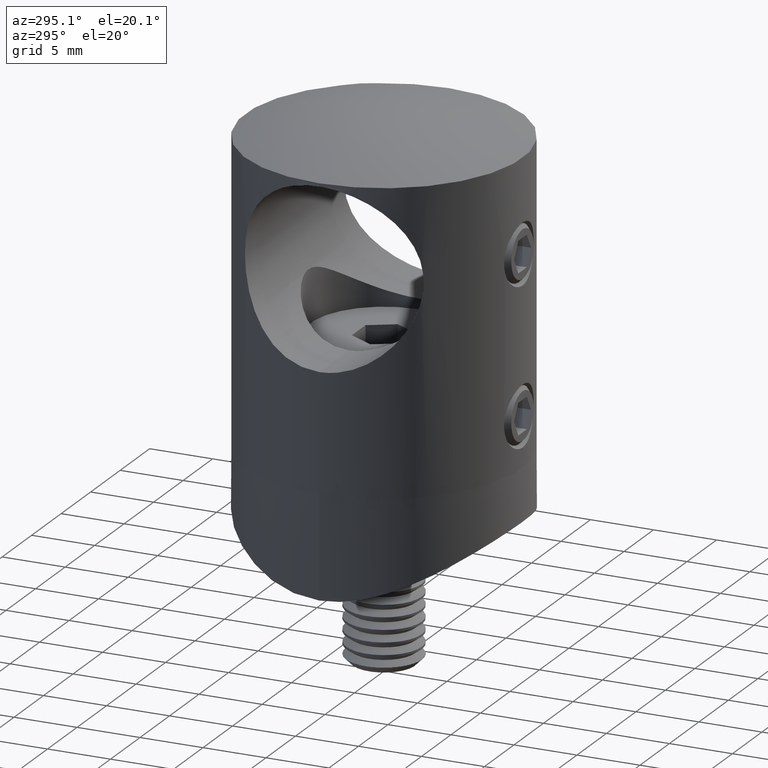
[diagram: clean part render]
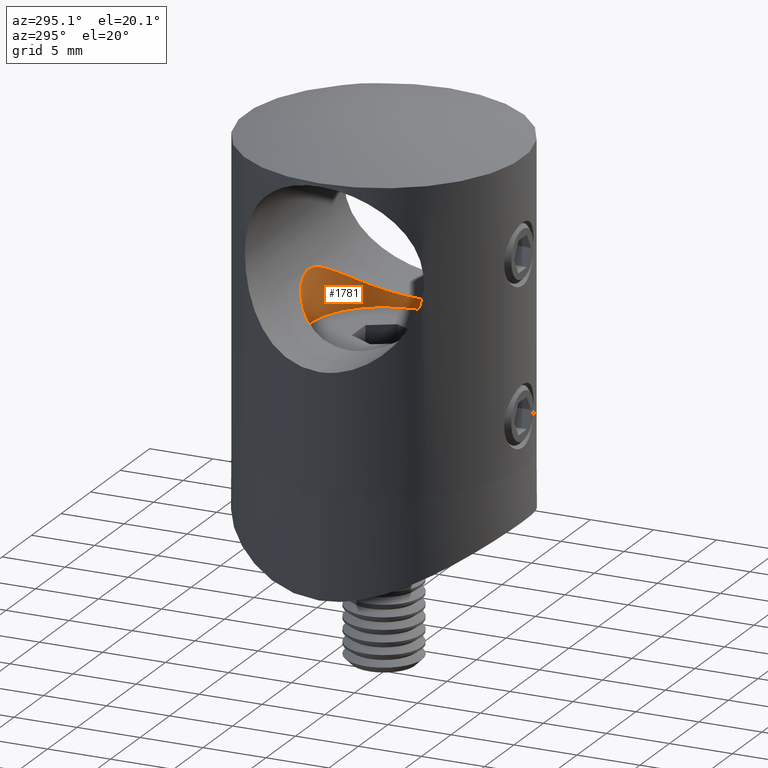
[diagram: same view with one face highlighted and labeled with its STEP entity id]
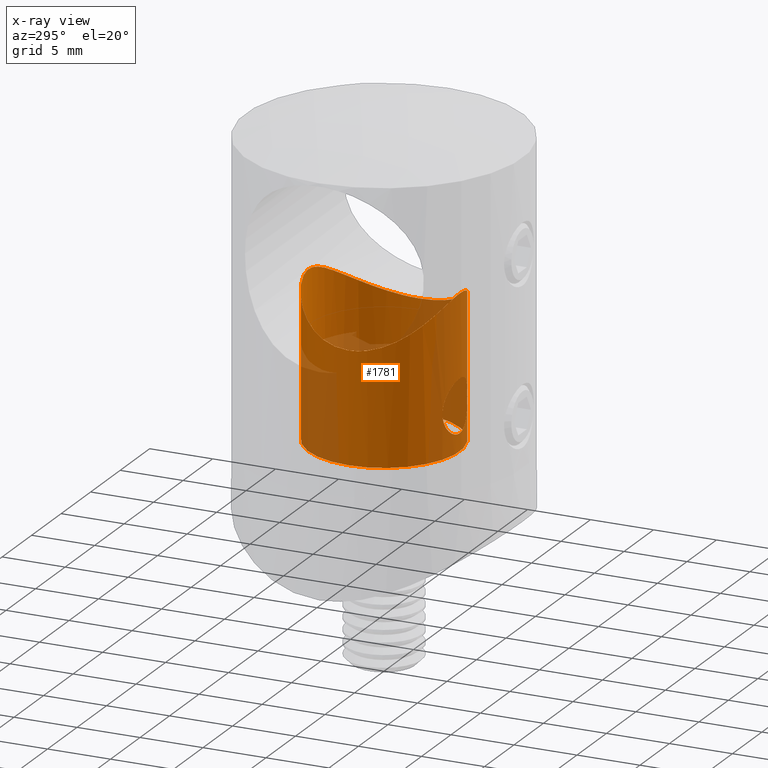
[diagram: x-ray of the same camera — body ghosted, the highlighted face saturated]
A machine part, auxiliary view. The second image highlights one B-rep face of the part: STEP entity #1781.
The next image is the same camera in x-ray: the body ghosted, the highlighted face saturated — about 34% of this face is hidden behind the body in this view.
In plain terms, the highlighted cylindrical surface (bore or boss wall) has radius 6 mm, axis along (-0, -0, -1).
Its self-contained STEP definition (entity closure, byte-faithful):
#216 = CARTESIAN_POINT ( 'NONE',  ( 0.8403754529403169000, -5.944502367105699600, 12.51740611922530300 ) ) ;
#236 = CARTESIAN_POINT ( 'NONE',  ( 1.820638573103270200, -5.717652440165352300, 5.055379003986187700 ) ) ;
#299 = CARTESIAN_POINT ( 'NONE',  ( 5.824379174162317900, 1.455723984333428600, 9.447817276396453000 ) ) ;
#414 = DIRECTION ( 'NONE',  ( 0.0000000000000000000, 0.0000000000000000000, -1.000000000000000000 ) ) ;
#493 = ORIENTED_EDGE ( 'NONE', *, *, #510, .F. ) ;
#510 = EDGE_CURVE ( 'NONE', #9156, #9156, #18685, .T. ) ;
#595 = CARTESIAN_POINT ( 'NONE',  ( -1.631362855885414300, -5.788242461569518000, 12.28559420233721300 ) ) ;
#614 = CARTESIAN_POINT ( 'NONE',  ( -2.085970634324527700, -5.625794041661615500, 4.278667550940393300 ) ) ;
#832 = CARTESIAN_POINT ( 'NONE',  ( -0.6805891605157771100, -5.962656029525707200, 2.008574322222096000 ) ) ;
#973 = CARTESIAN_POINT ( 'NONE',  ( -5.329813343587205500, -2.784648955960873400, 9.857183176020043900 ) ) ;
#1118 = CARTESIAN_POINT ( 'NONE',  ( -6.000000000000000000, -5.149960319306146100E-016, 9.299999999999998900 ) ) ;
#1781 = ADVANCED_FACE ( 'NONE', ( #3476, #9540, #2359 ), #15893, .F. ) ;
#1983 = CARTESIAN_POINT ( 'NONE',  ( 0.0000000000000000000, -6.000000000000000900, 1.900000000000006800 ) ) ;
#2000 = CARTESIAN_POINT ( 'NONE',  ( -5.999999999999998200, 0.4255906106727202500, 9.300000000000000700 ) ) ;
#2008 = CARTESIAN_POINT ( 'NONE',  ( 0.2172863810251527700, -5.999785139815387000, 12.60360981548990500 ) ) ;
#2026 = CARTESIAN_POINT ( 'NONE',  ( 1.055318436482936700, -5.907600806349175400, 2.179273462287427700 ) ) ;
#2155 = CARTESIAN_POINT ( 'NONE',  ( 5.828772570954779300, -1.438195329528195700, 9.444135390484151000 ) ) ;
#2242 = CARTESIAN_POINT ( 'NONE',  ( -5.421010862427522200E-017, -6.000000000000001800, 1.900000000000007200 ) ) ;
#2304 = CARTESIAN_POINT ( 'NONE',  ( -2.696397146119860800, -5.373303209285173100, 11.75317120065864900 ) ) ;
#2359 = FACE_OUTER_BOUND ( 'NONE', #22483, .T. ) ;
#2628 = CARTESIAN_POINT ( 'NONE',  ( -0.2760850920997860400, -5.995199655506469000, 6.086402343784770100 ) ) ;
#2907 = CARTESIAN_POINT ( 'NONE',  ( -5.572422891737574900, -2.233472215406453900, 9.657613010733536300 ) ) ;
#2939 = CARTESIAN_POINT ( 'NONE',  ( 2.001897216983309600, 5.668783512326655200, 12.11861732169408900 ) ) ;
#3015 = CARTESIAN_POINT ( 'NONE',  ( 1.626502383520758800, 5.789314081546451400, 12.28716072661946700 ) ) ;
#3090 = CARTESIAN_POINT ( 'NONE',  ( 5.027575539599600200, 3.280322343229418600, 10.10063688166239100 ) ) ;
#3476 = FACE_BOUND ( 'NONE', #4200, .T. ) ;
#3798 = CARTESIAN_POINT ( 'NONE',  ( -0.4188305109936360000, -5.988974953983113600, 12.58636915842258300 ) ) ;
#3817 = CARTESIAN_POINT ( 'NONE',  ( 0.9351004188317552100, -5.928068568057646800, 2.114661748824999200 ) ) ;
#3841 = CARTESIAN_POINT ( 'NONE',  ( -5.326490552797530100, 2.768939498764430200, 9.859487026903863700 ) ) ;
#3904 = DIRECTION ( 'NONE',  ( 1.000000000000000000, 0.0000000000000000000, 0.0000000000000000000 ) ) ;
#3967 = CARTESIAN_POINT ( 'NONE',  ( 1.992054000542895300, -5.659936331073166300, 4.678887825467367800 ) ) ;
#4024 = CARTESIAN_POINT ( 'NONE',  ( 2.003774538605403800, -5.658884263988764700, 12.11083033382254100 ) ) ;
#4042 = CARTESIAN_POINT ( 'NONE',  ( 2.086195265504057000, -5.625710555255438700, 4.277106224398222500 ) ) ;
#4054 = CARTESIAN_POINT ( 'NONE',  ( -3.638768708274211500, 4.784851395820308700, 11.14664390087054900 ) ) ;
#4117 = CARTESIAN_POINT ( 'NONE',  ( -1.991790499454957100, -5.660027428170497600, 4.679568982034624000 ) ) ;
#4194 = CARTESIAN_POINT ( 'NONE',  ( -1.388036528353558100, -5.838097357248577700, 5.581828602384570500 ) ) ;
#4200 = EDGE_LOOP ( 'NONE', ( #7796 ) ) ;
#4347 = CARTESIAN_POINT ( 'NONE',  ( -0.8376258012268633600, 5.944932101896895000, 12.51806431799274900 ) ) ;
#4414 = CARTESIAN_POINT ( 'NONE',  ( -1.054979748196500600, -5.907653145361193100, 2.179116733785587000 ) ) ;
#4713 = CARTESIAN_POINT ( 'NONE',  ( 4.453609379297916800, 4.037579987130033700, 10.55080833122428000 ) ) ;
#4868 = CARTESIAN_POINT ( 'NONE',  ( 5.131682348192301300, 3.115122463272038900, 10.01713305262651200 ) ) ;
#5513 = CARTESIAN_POINT ( 'NONE',  ( 0.2773110508732141700, -5.995114773543329000, 1.913844450117064800 ) ) ;
#5564 = CARTESIAN_POINT ( 'NONE',  ( -5.955259686151070000, 0.8403312590452684000, 9.337922232234763700 ) ) ;
#5592 = CARTESIAN_POINT ( 'NONE',  ( 1.581278183707604900, -5.788737489101017700, 5.388590976637336100 ) ) ;
#5661 = CARTESIAN_POINT ( 'NONE',  ( -5.134128972121322600, 3.111148864082782200, 10.01516729705678800 ) ) ;
#5729 = CARTESIAN_POINT ( 'NONE',  ( 5.956842814989179200, -0.8294610519354083100, 9.336585283979914600 ) ) ;
#5745 = CARTESIAN_POINT ( 'NONE',  ( 1.389511688007988100, -5.837728522015407200, 2.419587935187493200 ) ) ;
#5813 = CARTESIAN_POINT ( 'NONE',  ( -0.9349122421464504100, -5.928103206872799900, 2.114551264284959300 ) ) ;
#5890 = CARTESIAN_POINT ( 'NONE',  ( -1.282893921177701100, -5.862382304820062700, 5.668170089699676100 ) ) ;
#5978 = CARTESIAN_POINT ( 'NONE',  ( -5.029821966736994600, 3.276829155650979900, 10.09883970379459100 ) ) ;
#6096 = CARTESIAN_POINT ( 'NONE',  ( -4.699507218552371400, -3.749794225432207200, 10.36034332612697800 ) ) ;
#6117 = CARTESIAN_POINT ( 'NONE',  ( -0.9335114993840605300, -5.928316084038139700, 5.886112174640410400 ) ) ;
#6304 = DIRECTION ( 'NONE',  ( -1.000000000000000000, 0.0000000000000000000, 0.0000000000000000000 ) ) ;
#6497 = CARTESIAN_POINT ( 'NONE',  ( 4.696780111688950000, 3.753448882018302500, 10.36248536409851600 ) ) ;
#6570 = CARTESIAN_POINT ( 'NONE',  ( 1.036256247114738500, 5.913255437989581000, 12.46950241941940100 ) ) ;
#7208 = CARTESIAN_POINT ( 'NONE',  ( 0.6810570200218701900, -5.962585327761368100, 5.991205495255797200 ) ) ;
#7289 = CARTESIAN_POINT ( 'NONE',  ( 2.100097390676808600, -5.620461810260685800, 4.136718875267625600 ) ) ;
#7367 = CARTESIAN_POINT ( 'NONE',  ( 1.056572057962529300, -5.907370391185574800, 5.819974034561118600 ) ) ;
#7421 = CARTESIAN_POINT ( 'NONE',  ( 5.578265404711226300, -2.218748832689772000, 9.652779712696055700 ) ) ;
#7488 = CARTESIAN_POINT ( 'NONE',  ( 3.932860729889278200, -4.546484401073164400, 10.93687559249450900 ) ) ;
#7509 = CARTESIAN_POINT ( 'NONE',  ( 0.5472454995192380700, -5.976522812652007100, 1.967890563847576500 ) ) ;
#7652 = CARTESIAN_POINT ( 'NONE',  ( -0.5485102145950172500, -5.976435261253112900, 6.031854882297268200 ) ) ;
#7721 = CARTESIAN_POINT ( 'NONE',  ( -2.086440083120673500, -5.625620362231071400, 3.724349182297993300 ) ) ;
#7796 = ORIENTED_EDGE ( 'NONE', *, *, #14136, .T. ) ;
#7806 = CARTESIAN_POINT ( 'NONE',  ( -1.281623710314719200, -5.862660541099056200, 2.330856865501477400 ) ) ;
#7883 = CARTESIAN_POINT ( 'NONE',  ( -1.056301083882023900, -5.907416619898390800, 5.820119853568162000 ) ) ;
#7929 = CARTESIAN_POINT ( 'NONE',  ( -5.646715179192989700, 2.038767760432293600, 9.596017525992774500 ) ) ;
#7965 = CARTESIAN_POINT ( 'NONE',  ( -1.633339635944446100, 5.787447737784170900, 12.28450020611923900 ) ) ;
#8278 = VERTEX_POINT ( 'NONE', #17886 ) ;
#8488 = CARTESIAN_POINT ( 'NONE',  ( 5.770617233778939000, 1.655923579157723400, 9.492844721344067000 ) ) ;
#9061 = CARTESIAN_POINT ( 'NONE',  ( 2.086293483836122700, -5.625674900985020000, 3.723311567177205000 ) ) ;
#9119 = CARTESIAN_POINT ( 'NONE',  ( 6.000900904544517200, -0.4114947982178308600, 9.299238672725383700 ) ) ;
#9156 = VERTEX_POINT ( 'NONE', #22678 ) ;
#9197 = CARTESIAN_POINT ( 'NONE',  ( 5.775187955432036400, -1.639870668147696200, 9.489023694791937300 ) ) ;
#9297 = CARTESIAN_POINT ( 'NONE',  ( 1.833344241584947000, -5.714120875558134700, 2.940059396667278300 ) ) ;
#9299 = EDGE_LOOP ( 'NONE', ( #13330 ) ) ;
#9312 = AXIS2_PLACEMENT_3D ( 'NONE', #11418, #18340, #6304 ) ;
#9363 = CARTESIAN_POINT ( 'NONE',  ( -2.099994040831215400, -5.620500425096848200, 3.861512015611140700 ) ) ;
#9488 = CARTESIAN_POINT ( 'NONE',  ( -3.026219811695017600, -5.193944002147429900, 11.55074824867313100 ) ) ;
#9510 = CARTESIAN_POINT ( 'NONE',  ( -0.5468734143387938800, -5.976552651432204900, 1.967803393346849300 ) ) ;
#9540 = FACE_OUTER_BOUND ( 'NONE', #9299, .T. ) ;
#9564 = CARTESIAN_POINT ( 'NONE',  ( -3.921573392429202400, -4.556114701658164500, 10.94499866620583400 ) ) ;
#9581 = CARTESIAN_POINT ( 'NONE',  ( -1.833295944888411600, -5.714140928245533300, 2.939791683323970800 ) ) ;
#9651 = CARTESIAN_POINT ( 'NONE',  ( -0.2773106023340089500, -5.995110587510879400, 1.913857049664069200 ) ) ;
#9709 = CARTESIAN_POINT ( 'NONE',  ( -5.824010817262433200, -1.457282579998576000, 9.448126169380884700 ) ) ;
#9966 = CARTESIAN_POINT ( 'NONE',  ( -1.041978792573833100, 5.912264170079763100, 12.46800243502809400 ) ) ;
#10122 = CARTESIAN_POINT ( 'NONE',  ( 3.635589828323202400, 4.787358991253966200, 11.14888961510043500 ) ) ;
#10200 = CARTESIAN_POINT ( 'NONE',  ( 5.571905937862744000, 2.234603813979926900, 9.658037442074350700 ) ) ;
#10834 = CARTESIAN_POINT ( 'NONE',  ( 3.032278631375847000, -5.190424719863007600, 11.54695414397451200 ) ) ;
#10853 = CARTESIAN_POINT ( 'NONE',  ( 1.885684773470323500, -5.696257661656740200, 4.934537723020821600 ) ) ;
#10906 = CARTESIAN_POINT ( 'NONE',  ( -6.000000000000000000, -5.149960319306146100E-016, 9.299999999999998900 ) ) ;
#10989 = CARTESIAN_POINT ( 'NONE',  ( 4.705776500241733600, -3.741935864694066800, 10.35545543142753100 ) ) ;
#11066 = CARTESIAN_POINT ( 'NONE',  ( 2.708719751215448400, -5.367198580856435100, 11.74603633967606000 ) ) ;
#11220 = CARTESIAN_POINT ( 'NONE',  ( -1.034907088547860800, -5.913564171330446800, 12.46995162154507300 ) ) ;
#11241 = CARTESIAN_POINT ( 'NONE',  ( -1.679082131009260700, -5.763747723864387500, 5.290733017625370800 ) ) ;
#11306 = CARTESIAN_POINT ( 'NONE',  ( -0.1399303184415943700, -6.000000000000003600, 1.900000000000007500 ) ) ;
#11380 = CARTESIAN_POINT ( 'NONE',  ( -2.100005955277873600, -5.620495973474043600, 4.138307198453890800 ) ) ;
#11391 = CARTESIAN_POINT ( 'NONE',  ( -0.4212014941561665900, 5.988858320278230200, 12.58618060796797300 ) ) ;
#11418 = CARTESIAN_POINT ( 'NONE',  ( 0.0000000000000000000, 0.0000000000000000000, 16.39999999999999900 ) ) ;
#11476 = B_SPLINE_CURVE_WITH_KNOTS ( 'NONE', 3,
 ( #2242, #21575, #5513, #7509, #12764, #3817, #2026, #19885, #5745, #12693, #9297, #16148, #14525, #9061, #14597, #7289, #4042, #21429, #3967, #10853, #236, #16372, #5592, #16296, #17921, #7367, #17765, #7208, #19737, #19581, #21499, #18069, #2628, #7652, #14671, #6117, #7883, #5890, #4194, #11241, #12982, #4117, #20034, #614, #11380, #9363, #7721, #16593, #21873, #9581, #14960, #18300, #7806, #4414, #5813, #832, #9510, #9651, #11306, #18222 ),
 .UNSPECIFIED., .T., .F.,
 ( 4, 2, 2, 2, 2, 2, 2, 2, 2, 2, 2, 2, 2, 2, 2, 2, 2, 2, 2, 2, 2, 2, 2, 2, 2, 2, 2, 2, 2, 4 ),
 ( 0.0000000000000000000, 0.0004135997285890928200, 0.0008271994571781854200, 0.001240799185767278200, 0.001654398914356370600, 0.002481598371534556400, 0.002895198100123648800, 0.003308797828712741300, 0.003722397557301833300, 0.004135997285890926100, 0.004549597014480017700, 0.004963196743069110200, 0.005376796471658201700, 0.005790396200247294200, 0.006203995928836386600, 0.006617595657425478200, 0.007031195386014570600, 0.007444795114603662200, 0.007858394843192756400, 0.008271994571781848800, 0.009099194028960033700, 0.009512793757549127900, 0.009926393486138223800, 0.01033999321472731600, 0.01075359294331641200, 0.01158079240049460000, 0.01199439212908369600, 0.01240799185767279400, 0.01282159158626188800, 0.01323519131485098400 ),
 .UNSPECIFIED. ) ;
#11614 = CARTESIAN_POINT ( 'NONE',  ( 0.2058670067223432000, 6.000114889573026700, 12.60413101400458500 ) ) ;
#11658 = CARTESIAN_POINT ( 'NONE',  ( -5.645251958818044500, -2.042697817941950600, 9.597231322444939000 ) ) ;
#12606 = CARTESIAN_POINT ( 'NONE',  ( 0.4263398409215536400, -5.988453359129795000, 12.58554459967330700 ) ) ;
#12693 = CARTESIAN_POINT ( 'NONE',  ( 1.677500159237451200, -5.764135783203782300, 2.707802910303008600 ) ) ;
#12764 = CARTESIAN_POINT ( 'NONE',  ( 0.6812341139050355200, -5.962577447961941800, 2.008811109739972300 ) ) ;
#12927 = CARTESIAN_POINT ( 'NONE',  ( 0.0000000000000000000, 0.0000000000000000000, 0.5000000000000073300 ) ) ;
#12982 = CARTESIAN_POINT ( 'NONE',  ( -1.832704397464457200, -5.714346342055216100, 5.061775951773686400 ) ) ;
#13330 = ORIENTED_EDGE ( 'NONE', *, *, #20514, .T. ) ;
#13803 = CARTESIAN_POINT ( 'NONE',  ( 0.8342265236424136800, 5.945427389359215600, 12.51882448798661500 ) ) ;
#14136 = EDGE_CURVE ( 'NONE', #19938, #19938, #11476, .T. ) ;
#14356 = CARTESIAN_POINT ( 'NONE',  ( -0.2052537967127295000, -6.000208827554549100, 12.60427949096214900 ) ) ;
#14507 = CARTESIAN_POINT ( 'NONE',  ( 4.463500492273321500, -4.026794914740838400, 10.54327980728964500 ) ) ;
#14525 = CARTESIAN_POINT ( 'NONE',  ( 2.031893931028322200, -5.645550960297868800, 3.451744546214746900 ) ) ;
#14577 = CARTESIAN_POINT ( 'NONE',  ( 2.185414661741644800, -5.591060595315315000, 12.02231899186302900 ) ) ;
#14597 = CARTESIAN_POINT ( 'NONE',  ( 2.099901555218821200, -5.620534980703876500, 3.860305477660864500 ) ) ;
#14671 = CARTESIAN_POINT ( 'NONE',  ( -0.6799031944775879600, -5.962726470154970900, 5.991631115680869300 ) ) ;
#14726 = CARTESIAN_POINT ( 'NONE',  ( -2.000566358878304500, -5.669275014694742200, 12.11926103609897400 ) ) ;
#14864 = CARTESIAN_POINT ( 'NONE',  ( -0.8324479774664875800, -5.945609334726608400, 12.51910695405306100 ) ) ;
#14960 = CARTESIAN_POINT ( 'NONE',  ( -1.677594955765174600, -5.764126152619212500, 2.707790437232916700 ) ) ;
#15097 = CARTESIAN_POINT ( 'NONE',  ( -5.953794273955252500, -0.8505479490576349800, 9.339160298830556400 ) ) ;
#15270 = CARTESIAN_POINT ( 'NONE',  ( 2.697075260187719700, 5.372939978994312900, 11.75275779307242100 ) ) ;
#15768 = CIRCLE ( 'NONE', #16838, 6.000000000000000900 ) ;
#15893 = CYLINDRICAL_SURFACE ( 'NONE', #9312, 6.000000000000000900 ) ;
#16131 = CARTESIAN_POINT ( 'NONE',  ( 5.999071219142572400, 0.4373604266263141900, 9.300784884714337500 ) ) ;
#16148 = CARTESIAN_POINT ( 'NONE',  ( 1.990963533487665200, -5.660313271408463200, 3.318295880892016200 ) ) ;
#16296 = CARTESIAN_POINT ( 'NONE',  ( 1.388251816607981800, -5.838037281970530400, 5.581575950864485800 ) ) ;
#16372 = CARTESIAN_POINT ( 'NONE',  ( 1.669065092636238500, -5.763722404570113900, 5.281706429908801700 ) ) ;
#16570 = CARTESIAN_POINT ( 'NONE',  ( -3.637488176373556500, -4.785785245169409800, 11.14751902123303900 ) ) ;
#16593 = CARTESIAN_POINT ( 'NONE',  ( -2.032103204105485200, -5.645475466979344300, 3.452485469036112400 ) ) ;
#16651 = CARTESIAN_POINT ( 'NONE',  ( -4.451687214761059300, -4.039727712211218100, 10.55228072343118500 ) ) ;
#16753 = CARTESIAN_POINT ( 'NONE',  ( -2.703354948880914300, 5.369790747988596500, 11.74909260839773900 ) ) ;
#16838 = AXIS2_PLACEMENT_3D ( 'NONE', #12927, #414, #3904 ) ;
#17765 = CARTESIAN_POINT ( 'NONE',  ( 0.9337857770029868200, -5.928263369488840700, 5.885943294885849200 ) ) ;
#17886 = CARTESIAN_POINT ( 'NONE',  ( 6.000000000000000900, 0.0000000000000000000, 0.5000000000000073300 ) ) ;
#17921 = CARTESIAN_POINT ( 'NONE',  ( 1.283385613909028100, -5.862276931221736700, 5.667804354879554500 ) ) ;
#17979 = CARTESIAN_POINT ( 'NONE',  ( 5.953683116407369800, 0.8507394908683467700, 9.339252866557394800 ) ) ;
#18069 = CARTESIAN_POINT ( 'NONE',  ( -0.1370357647622484900, -6.000018211104130500, 6.100052031729359400 ) ) ;
#18128 = CARTESIAN_POINT ( 'NONE',  ( 1.631818150420095000, -5.777131904218781400, 12.27147792791003900 ) ) ;
#18159 = CARTESIAN_POINT ( 'NONE',  ( -3.026713845289945100, 5.193692702801088000, 11.55045267130890500 ) ) ;
#18222 = CARTESIAN_POINT ( 'NONE',  ( -5.421010862427522200E-017, -6.000000000000001800, 1.900000000000007200 ) ) ;
#18300 = CARTESIAN_POINT ( 'NONE',  ( -1.388843066986826800, -5.837892061353310100, 2.418972633787931100 ) ) ;
#18340 = DIRECTION ( 'NONE',  ( -0.0000000000000000000, -0.0000000000000000000, -1.000000000000000000 ) ) ;
#18387 = CARTESIAN_POINT ( 'NONE',  ( -4.458271958745062800, 4.032493471753877400, 10.54725876868332800 ) ) ;
#18569 = CARTESIAN_POINT ( 'NONE',  ( -5.414767279929796100, 2.592301380474763700, 9.787312634040812800 ) ) ;
#18685 = B_SPLINE_CURVE_WITH_KNOTS ( 'NONE', 3,
 ( #10906, #2000, #5564, #19935, #21777, #7929, #20302, #18569, #3841, #5661, #5978, #20044, #18387, #20189, #4054, #18159, #16753, #20557, #7965, #9966, #4347, #11391, #22111, #11614, #20933, #13803, #6570, #3015, #2939, #15270, #18917, #10122, #19075, #4713, #6497, #3090, #4868, #18992, #20781, #10200, #22551, #8488, #299, #17979, #16131, #9119, #5729, #2155, #9197, #19637, #7421, #21408, #21559, #10989, #14507, #7488, #19870, #10834, #11066, #14577, #4024, #18128, #19940, #21326, #216, #12606, #2008, #14356, #3798, #14864, #11220, #595, #14726, #2304, #9488, #16570, #9564, #16651, #6096, #20530, #973, #2907, #11658, #18889, #9709, #15097, #22075, #1118 ),
 .UNSPECIFIED., .T., .F.,
 ( 4, 2, 2, 2, 2, 2, 2, 2, 2, 2, 2, 2, 2, 2, 2, 2, 2, 2, 2, 2, 2, 2, 2, 2, 2, 2, 2, 2, 2, 2, 2, 2, 2, 2, 2, 2, 2, 2, 2, 2, 2, 2, 2, 4 ),
 ( 0.0000000000000000000, 0.001255468896717148700, 0.001883203345075723400, 0.002510937793434298300, 0.003138672241792873400, 0.003766406690151448100, 0.005021875586868598300, 0.006277344483585747600, 0.007532813380302897000, 0.008788282277020047200, 0.009416016725378622800, 0.01004375117373719800, 0.01067148562209577200, 0.01129922007045434800, 0.01255468896717149700, 0.01381015786388865000, 0.01506562676060579900, 0.01632109565732295000, 0.01694883010568152400, 0.01757656455404010100, 0.01820429900239867500, 0.01883203345075724600, 0.02008750234747439700, 0.02134297124419154400, 0.02197070569255011800, 0.02259844014090869500, 0.02385390903762584600, 0.02510937793434299800, 0.02636484683106015600, 0.02762031572777730700, 0.02824805017613588700, 0.02887578462449446500, 0.02950351907285304200, 0.03013125352121161900, 0.03075898796957020000, 0.03138672241792878100, 0.03264219131464593500, 0.03389766021136308300, 0.03515312910808023700, 0.03640859800479739200, 0.03766406690151454700, 0.03829180134987312400, 0.03891953579823170100, 0.04017500469494885600 ),
 .UNSPECIFIED. ) ;
#18889 = CARTESIAN_POINT ( 'NONE',  ( -5.770779943530155400, -1.655168540455579800, 9.492707248245865900 ) ) ;
#18917 = CARTESIAN_POINT ( 'NONE',  ( 3.021195086839681300, 5.196989489906929500, 11.55394318777243800 ) ) ;
#18992 = CARTESIAN_POINT ( 'NONE',  ( 5.323422327721976500, 2.774766008989168100, 9.861984091147121500 ) ) ;
#19075 = CARTESIAN_POINT ( 'NONE',  ( 3.924215882971286500, 4.553813606163434900, 10.94308906331897200 ) ) ;
#19581 = CARTESIAN_POINT ( 'NONE',  ( 0.2777402781516119000, -5.995120906657181300, 6.086177050655782800 ) ) ;
#19637 = CARTESIAN_POINT ( 'NONE',  ( 5.649880896837491800, -2.029979699496828000, 9.593389116525813200 ) ) ;
#19737 = CARTESIAN_POINT ( 'NONE',  ( 0.5499592264330737100, -5.976299791409975800, 6.031457407392960800 ) ) ;
#19870 = CARTESIAN_POINT ( 'NONE',  ( 3.643421681895576000, -4.781286533848056100, 11.14339825224562300 ) ) ;
#19885 = CARTESIAN_POINT ( 'NONE',  ( 1.282773082496065000, -5.862417377531365900, 2.331696866173552900 ) ) ;
#19935 = CARTESIAN_POINT ( 'NONE',  ( -5.826429792328103700, 1.447596115523148000, 9.446098919164480600 ) ) ;
#19938 = VERTEX_POINT ( 'NONE', #1983 ) ;
#19940 = CARTESIAN_POINT ( 'NONE',  ( 1.440833190072401600, -5.827924969118562600, 12.34403964979529900 ) ) ;
#20034 = CARTESIAN_POINT ( 'NONE',  ( -2.031781744484791200, -5.645590759985886100, 4.548445105721373100 ) ) ;
#20044 = CARTESIAN_POINT ( 'NONE',  ( -4.700813520777003900, 3.748229658446419400, 10.35932983827607300 ) ) ;
#20189 = CARTESIAN_POINT ( 'NONE',  ( -3.928439217802486700, 4.550226122941760200, 10.94005258719552600 ) ) ;
#20302 = CARTESIAN_POINT ( 'NONE',  ( -5.574876951691186900, 2.227213082871074300, 9.655581379346656900 ) ) ;
#20514 = EDGE_CURVE ( 'NONE', #8278, #8278, #15768, .T. ) ;
#20530 = CARTESIAN_POINT ( 'NONE',  ( -5.137652430859843000, -3.122635478244380400, 10.01348630774558400 ) ) ;
#20557 = CARTESIAN_POINT ( 'NONE',  ( -2.008318929482300100, 5.666518837373256900, 12.11559146344112600 ) ) ;
#20781 = CARTESIAN_POINT ( 'NONE',  ( 5.411619010786369100, 2.598840062016002600, 9.789890797423566900 ) ) ;
#20933 = CARTESIAN_POINT ( 'NONE',  ( 0.4167959053649906700, 5.989183743062342000, 12.58669326056336000 ) ) ;
#21326 = CARTESIAN_POINT ( 'NONE',  ( 1.046060905831159000, -5.911553629003252700, 12.46692772765021200 ) ) ;
#21408 = CARTESIAN_POINT ( 'NONE',  ( 5.338414262100825700, -2.767832798064170200, 9.850159272636249200 ) ) ;
#21429 = CARTESIAN_POINT ( 'NONE',  ( 2.032077313730785000, -5.645484189008472600, 4.547412400692979700 ) ) ;
#21499 = CARTESIAN_POINT ( 'NONE',  ( 0.1386258689238649400, -5.999981683544565800, 6.099947667266898000 ) ) ;
#21559 = CARTESIAN_POINT ( 'NONE',  ( 5.142996837162563400, -3.113840075958767400, 10.00917821885981600 ) ) ;
#21575 = CARTESIAN_POINT ( 'NONE',  ( 0.1399303184415932900, -6.000000000000000900, 1.900000000000006800 ) ) ;
#21777 = CARTESIAN_POINT ( 'NONE',  ( -5.772621769369153300, 1.648879681393391000, 9.491168891638492900 ) ) ;
#21873 = CARTESIAN_POINT ( 'NONE',  ( -1.991246174694209200, -5.660214997163486700, 3.319050225171499900 ) ) ;
#22075 = CARTESIAN_POINT ( 'NONE',  ( -6.000000000000000900, -0.4255906106727212500, 9.299999999999998900 ) ) ;
#22111 = CARTESIAN_POINT ( 'NONE',  ( -0.2125103307182890100, 5.999883271520433300, 12.60376492099778300 ) ) ;
#22483 = EDGE_LOOP ( 'NONE', ( #493 ) ) ;
#22551 = CARTESIAN_POINT ( 'NONE',  ( 5.644002529706734900, 2.046299490167809300, 9.598269680440569800 ) ) ;
#22678 = CARTESIAN_POINT ( 'NONE',  ( -6.000000000000000900, 0.0000000000000000000, 9.299999999999998900 ) ) ;